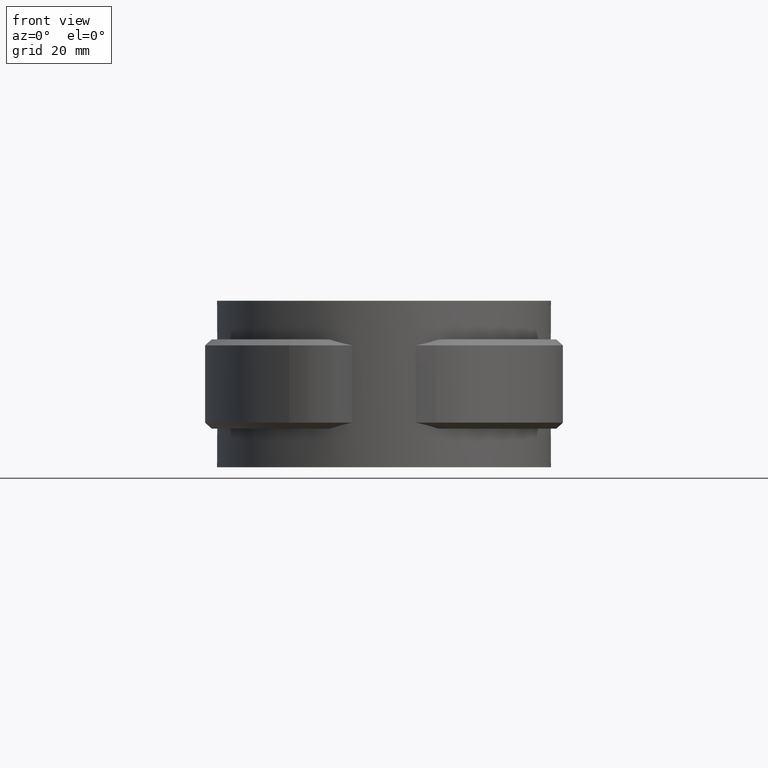
[diagram: clean part render]
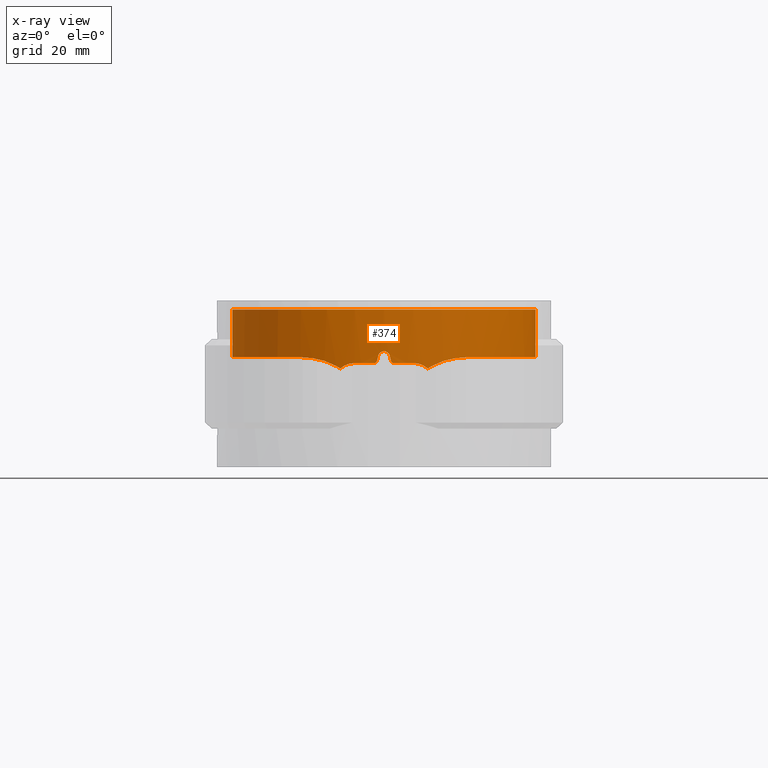
[diagram: x-ray — body ghosted, one internal face saturated and labeled with its STEP entity id]
A machine part, front view, then the same camera in x-ray: the body is ghosted and one INTERNAL B-rep face — a face not visible from any outside direction — is saturated and labeled: STEP entity #374.
In plain terms, the highlighted cylindrical surface (partial cylindrical patch) has radius 25.5 mm, axis along (0, 0, 1).
Its self-contained STEP definition (entity closure, byte-faithful):
#374 = ADVANCED_FACE( '', ( #746 ), #747, .F. );
#746 = FACE_OUTER_BOUND( '', #1689, .T. );
#747 = CYLINDRICAL_SURFACE( '', #1690, 25.5000000000000 );
#1689 = EDGE_LOOP( '', ( #3457, #3458, #3459, #3460, #3461, #3462, #3463, #3464, #3465, #3466, #3467, #3468, #3469, #3470, #3471, #3472, #3473, #3474 ) );
#1690 = AXIS2_PLACEMENT_3D( '', #3475, #3476, #3477 );
#3457 = ORIENTED_EDGE( '', *, *, #7206, .T. );
#3458 = ORIENTED_EDGE( '', *, *, #7171, .T. );
#3459 = ORIENTED_EDGE( '', *, *, #7173, .T. );
#3460 = ORIENTED_EDGE( '', *, *, #7207, .T. );
#3461 = ORIENTED_EDGE( '', *, *, #7208, .T. );
#3462 = ORIENTED_EDGE( '', *, *, #7209, .T. );
#3463 = ORIENTED_EDGE( '', *, *, #7210, .T. );
#3464 = ORIENTED_EDGE( '', *, *, #7211, .T. );
#3465 = ORIENTED_EDGE( '', *, *, #7212, .T. );
#3466 = ORIENTED_EDGE( '', *, *, #7213, .T. );
#3467 = ORIENTED_EDGE( '', *, *, #7214, .T. );
#3468 = ORIENTED_EDGE( '', *, *, #7215, .T. );
#3469 = ORIENTED_EDGE( '', *, *, #7193, .T. );
#3470 = ORIENTED_EDGE( '', *, *, #7216, .F. );
#3471 = ORIENTED_EDGE( '', *, *, #7158, .T. );
#3472 = ORIENTED_EDGE( '', *, *, #7217, .T. );
#3473 = ORIENTED_EDGE( '', *, *, #7189, .T. );
#3474 = ORIENTED_EDGE( '', *, *, #7201, .T. );
#3475 = CARTESIAN_POINT( '', ( 0.000000000000000, 0.000000000000000, 0.000000000000000 ) );
#3476 = DIRECTION( '', ( 0.000000000000000, 0.000000000000000, 1.00000000000000 ) );
#3477 = DIRECTION( '', ( 1.00000000000000, -6.12303176911189E-017, 0.000000000000000 ) );
#7158 = EDGE_CURVE( '', #8156, #8154, #8157, .T. );
#7171 = EDGE_CURVE( '', #8162, #8179, #8181, .T. );
#7173 = EDGE_CURVE( '', #8179, #8182, #8184, .T. );
#7189 = EDGE_CURVE( '', #8212, #8210, #8213, .T. );
#7193 = EDGE_CURVE( '', #8219, #8220, #8221, .T. );
#7201 = EDGE_CURVE( '', #8210, #8233, #8235, .T. );
#7206 = EDGE_CURVE( '', #8233, #8162, #8243, .T. );
#7207 = EDGE_CURVE( '', #8182, #8244, #8245, .T. );
#7208 = EDGE_CURVE( '', #8244, #8246, #8247, .T. );
#7209 = EDGE_CURVE( '', #8246, #8248, #8249, .T. );
#7210 = EDGE_CURVE( '', #8248, #8250, #8251, .T. );
#7211 = EDGE_CURVE( '', #8250, #8252, #8253, .T. );
#7212 = EDGE_CURVE( '', #8252, #8254, #8255, .T. );
#7213 = EDGE_CURVE( '', #8254, #8256, #8257, .T. );
#7214 = EDGE_CURVE( '', #8256, #8258, #8259, .T. );
#7215 = EDGE_CURVE( '', #8258, #8219, #8260, .T. );
#7216 = EDGE_CURVE( '', #8156, #8220, #8261, .T. );
#7217 = EDGE_CURVE( '', #8154, #8212, #8262, .T. );
#8154 = VERTEX_POINT( '', #9916 );
#8156 = VERTEX_POINT( '', #9918 );
#8157 = CIRCLE( '', #9919, 25.5000000000000 );
#8162 = VERTEX_POINT( '', #9925 );
#8179 = VERTEX_POINT( '', #9999 );
#8181 = B_SPLINE_CURVE_WITH_KNOTS( '', 3, ( #10002, #10003, #10004, #10005, #10006, #10007, #10008, #10009, #10010, #10011 ), .UNSPECIFIED., .F., .F., ( 4, 2, 2, 2, 4 ), ( 0.00850208511020804, 0.00915846737097784, 0.00981484963174765, 0.0104712318925175, 0.0111276141532873 ), .UNSPECIFIED. );
#8182 = VERTEX_POINT( '', #10012 );
#8184 = CIRCLE( '', #10015, 25.5000000000000 );
#8210 = VERTEX_POINT( '', #10287 );
#8212 = VERTEX_POINT( '', #10295 );
#8213 = B_SPLINE_CURVE_WITH_KNOTS( '', 3, ( #10296, #10297, #10298, #10299, #10300, #10301, #10302, #10303, #10304, #10305, #10306, #10307, #10308, #10309, #10310, #10311, #10312, #10313, #10314, #10315, #10316, #10317, #10318, #10319, #10320, #10321, #10322, #10323, #10324, #10325, #10326, #10327, #10328, #10329, #10330, #10331, #10332, #10333, #10334, #10335, #10336, #10337 ), .UNSPECIFIED., .F., .F., ( 4, 2, 2, 2, 2, 2, 2, 2, 2, 2, 2, 2, 2, 2, 2, 2, 2, 2, 2, 2, 4 ), ( 3.46944695195361E-018, 0.00367893654871731, 0.00735787309743462, 0.00919734137179327, 0.0110368096461519, 0.0147157461948692, 0.0165552144692279, 0.0183946827435865, 0.0220736192923038, 0.0257525558410211, 0.0294314923897385, 0.0331104289384558, 0.0349498972128144, 0.0367893654871731, 0.0404683020358904, 0.0423077703102490, 0.0441472385846077, 0.0478261751333250, 0.0515051116820423, 0.0551840482307596, 0.0588629847794769 ), .UNSPECIFIED. );
#8219 = VERTEX_POINT( '', #10373 );
#8220 = VERTEX_POINT( '', #10374 );
#8221 = B_SPLINE_CURVE_WITH_KNOTS( '', 3, ( #10375, #10376, #10377, #10378, #10379, #10380, #10381, #10382, #10383, #10384, #10385, #10386, #10387, #10388, #10389, #10390, #10391, #10392, #10393, #10394, #10395, #10396, #10397, #10398, #10399, #10400, #10401, #10402, #10403, #10404, #10405, #10406, #10407, #10408, #10409, #10410, #10411, #10412, #10413, #10414, #10415, #10416 ), .UNSPECIFIED., .F., .F., ( 4, 2, 2, 2, 2, 2, 2, 2, 2, 2, 2, 2, 2, 2, 2, 2, 2, 2, 2, 2, 4 ), ( 9.81307786677359E-018, 0.00367893687146762, 0.00735787374293522, 0.00919734217866903, 0.0110368106144028, 0.0147157474858705, 0.0165552159216043, 0.0183946843573381, 0.0220736212288057, 0.0257525581002733, 0.0294314949717409, 0.0331104318432085, 0.0349499002789423, 0.0367893687146762, 0.0404683055861438, 0.0423077740218776, 0.0441472424576114, 0.0478261793290790, 0.0515051162005466, 0.0551840530720142, 0.0588629899434818 ), .UNSPECIFIED. );
#8233 = VERTEX_POINT( '', #10509 );
#8235 = B_SPLINE_CURVE_WITH_KNOTS( '', 3, ( #10515, #10516, #10517, #10518, #10519, #10520, #10521, #10522, #10523, #10524 ), .UNSPECIFIED., .F., .F., ( 4, 2, 2, 2, 4 ), ( 3.46944695195361E-018, 0.00173657544033169, 0.00347315088066339, 0.00520972632099508, 0.00694630176132677 ), .UNSPECIFIED. );
#8243 = B_SPLINE_CURVE_WITH_KNOTS( '', 3, ( #10551, #10552, #10553, #10554 ), .UNSPECIFIED., .F., .F., ( 4, 4 ), ( 2.30978935673937E-016, 0.000798238028061285 ), .UNSPECIFIED. );
#8244 = VERTEX_POINT( '', #10555 );
#8245 = B_SPLINE_CURVE_WITH_KNOTS( '', 3, ( #10556, #10557, #10558, #10559, #10560, #10561 ), .UNSPECIFIED., .F., .F., ( 4, 2, 4 ), ( 8.20849171219253E-018, 0.000336083199100263, 0.000672166398200517 ), .UNSPECIFIED. );
#8246 = VERTEX_POINT( '', #10562 );
#8247 = ELLIPSE( '', #10563, 116.166725925970, 25.5000000000000 );
#8248 = VERTEX_POINT( '', #10564 );
#8249 = B_SPLINE_CURVE_WITH_KNOTS( '', 3, ( #10565, #10566, #10567, #10568, #10569, #10570, #10571, #10572, #10573, #10574 ), .UNSPECIFIED., .F., .F., ( 4, 2, 2, 2, 4 ), ( 1.08420217248550E-019, 0.000671619266939462, 0.00134323853387892, 0.00201485780081838, 0.00268647706775785 ), .UNSPECIFIED. );
#8250 = VERTEX_POINT( '', #10575 );
#8251 = ELLIPSE( '', #10576, 116.166785185313, 25.5000000000000 );
#8252 = VERTEX_POINT( '', #10577 );
#8253 = B_SPLINE_CURVE_WITH_KNOTS( '', 3, ( #10578, #10579, #10580, #10581, #10582, #10583 ), .UNSPECIFIED., .F., .F., ( 4, 2, 4 ), ( 2.04566856771261E-018, 0.000336089115589765, 0.000672178231179528 ), .UNSPECIFIED. );
#8254 = VERTEX_POINT( '', #10584 );
#8255 = CIRCLE( '', #10585, 25.5000000000000 );
#8256 = VERTEX_POINT( '', #10586 );
#8257 = B_SPLINE_CURVE_WITH_KNOTS( '', 3, ( #10587, #10588, #10589, #10590, #10591, #10592, #10593, #10594, #10595, #10596 ), .UNSPECIFIED., .F., .F., ( 4, 2, 2, 2, 4 ), ( 2.60208521396521E-018, 0.000657020620494566, 0.00131404124098913, 0.00197106186148369, 0.00262808248197826 ), .UNSPECIFIED. );
#8258 = VERTEX_POINT( '', #10597 );
#8259 = B_SPLINE_CURVE_WITH_KNOTS( '', 3, ( #10598, #10599, #10600, #10601 ), .UNSPECIFIED., .F., .F., ( 4, 4 ), ( 0.00811585301675410, 0.00891486322571208 ), .UNSPECIFIED. );
#8260 = B_SPLINE_CURVE_WITH_KNOTS( '', 3, ( #10602, #10603, #10604, #10605, #10606, #10607, #10608, #10609, #10610, #10611 ), .UNSPECIFIED., .F., .F., ( 4, 2, 2, 2, 4 ), ( 1.73472347597681E-018, 0.00172797127034804, 0.00345594254069608, 0.00518391381104412, 0.00691188508139215 ), .UNSPECIFIED. );
#8261 = LINE( '', #10612, #10613 );
#8262 = LINE( '', #10614, #10615 );
#9916 = CARTESIAN_POINT( '', ( 6.02727272727272, 24.7774490912821, 0.000000000000000 ) );
#9918 = CARTESIAN_POINT( '', ( -6.02727272727273, 24.7774490912821, 0.000000000000000 ) );
#9919 = AXIS2_PLACEMENT_3D( '', #13787, #13788, #13789 );
#9925 = CARTESIAN_POINT( '', ( 7.34939546607403, -24.4179521312195, -9.90570993449255 ) );
#9999 = CARTESIAN_POINT( '', ( 5.00000000000000, -25.0049995001000, -9.00000000000000 ) );
#10002 = CARTESIAN_POINT( '', ( 7.34939546607647, -24.4179521312336, -9.90570993449475 ) );
#10003 = CARTESIAN_POINT( '', ( 7.19002830042956, -24.4659189844059, -9.76138663719246 ) );
#10004 = CARTESIAN_POINT( '', ( 7.01934867853847, -24.5155951669858, -9.63330824911260 ) );
#10005 = CARTESIAN_POINT( '', ( 6.65548995696407, -24.6168664881457, -9.40887663097829 ) );
#10006 = CARTESIAN_POINT( '', ( 6.46069820901420, -24.6688392725412, -9.31221188509042 ) );
#10007 = CARTESIAN_POINT( '', ( 6.06217657366655, -24.7697853763839, -9.15823201737013 ) );
#10008 = CARTESIAN_POINT( '', ( 5.85712685122793, -24.8191636452639, -9.09978998882263 ) );
#10009 = CARTESIAN_POINT( '', ( 5.43511411233680, -24.9149825122885, -9.02052155223629 ) );
#10010 = CARTESIAN_POINT( '', ( 5.21770426459036, -24.9614673527409, -8.99999999999997 ) );
#10011 = CARTESIAN_POINT( '', ( 5.00000000000000, -25.0049995001000, -8.99999999999997 ) );
#10012 = CARTESIAN_POINT( '', ( 1.64999999999995, -25.4465616537873, -9.00000000000000 ) );
#10015 = AXIS2_PLACEMENT_3D( '', #13797, #13798, #13799 );
#10287 = CARTESIAN_POINT( '', ( 14.0380773796952, -21.2880807843660, -8.00256714084616 ) );
#10295 = CARTESIAN_POINT( '', ( 6.02727272727272, 24.7774490912821, -8.00435030719461 ) );
#10296 = CARTESIAN_POINT( '', ( 6.02727272727272, 24.7774490912821, -8.00435030719460 ) );
#10297 = CARTESIAN_POINT( '', ( 7.23599043617387, 24.4834207893777, -8.00648047280333 ) );
#10298 = CARTESIAN_POINT( '', ( 8.40833073396198, 24.1050752320822, -8.00960165786446 ) );
#10299 = CARTESIAN_POINT( '', ( 10.6832558674306, 23.1866927729472, -8.01318213386109 ) );
#10300 = CARTESIAN_POINT( '', ( 11.7858329233706, 22.6466378563930, -8.01365063241761 ) );
#10301 = CARTESIAN_POINT( '', ( 13.3862508932498, 21.7126645761644, -8.01194020932682 ) );
#10302 = CARTESIAN_POINT( '', ( 13.9128744927420, 21.3790956027200, -8.01099314390399 ) );
#10303 = CARTESIAN_POINT( '', ( 14.9346540631046, 20.6782473497254, -8.00870389442224 ) );
#10304 = CARTESIAN_POINT( '', ( 15.4301058098800, 20.3110731277476, -8.00736616175202 ) );
#10305 = CARTESIAN_POINT( '', ( 16.8712199239447, 19.1604636138356, -8.00364013782481 ) );
#10306 = CARTESIAN_POINT( '', ( 17.7718715818085, 18.3281911366352, -8.00192910382054 ) );
#10307 = CARTESIAN_POINT( '', ( 19.0326615365575, 16.9819256063667, -8.00325822963941 ) );
#10308 = CARTESIAN_POINT( '', ( 19.4378359745583, 16.5167986474918, -8.00410926809196 ) );
#10309 = CARTESIAN_POINT( '', ( 20.2172730657249, 15.5530053276380, -8.00596291424165 ) );
#10310 = CARTESIAN_POINT( '', ( 20.5911038168385, 15.0544916301788, -8.00696233647980 ) );
#10311 = CARTESIAN_POINT( '', ( 21.6478825447636, 13.5330809457384, -8.00941485428378 ) );
#10312 = CARTESIAN_POINT( '', ( 22.2730579252557, 12.4766092997537, -8.01022551509677 ) );
#10313 = CARTESIAN_POINT( '', ( 23.3678649736153, 10.2809423466617, -8.00918317122034 ) );
#10314 = CARTESIAN_POINT( '', ( 23.8378586430602, 9.14070903084015, -8.00732483371213 ) );
#10315 = CARTESIAN_POINT( '', ( 24.6140797702939, 6.77813715814395, -8.00356538833633 ) );
#10316 = CARTESIAN_POINT( '', ( 24.9115322156420, 5.58301647356335, -8.00198911275021 ) );
#10317 = CARTESIAN_POINT( '', ( 25.3323822198717, 3.16621561827068, -8.00374588587573 ) );
#10318 = CARTESIAN_POINT( '', ( 25.4557627807475, 1.94453246483196, -8.00619494150133 ) );
#10319 = CARTESIAN_POINT( '', ( 25.5073199262339, 0.0916323898620054, -8.00875896915986 ) );
#10320 = CARTESIAN_POINT( '', ( 25.5019716075597, -0.531937079970103, -8.00945183909588 ) );
#10321 = CARTESIAN_POINT( '', ( 25.4460859163681, -1.76924403818120, -8.01022075164433 ) );
#10322 = CARTESIAN_POINT( '', ( 25.3957817943379, -2.38369131147523, -8.01030010625810 ) );
#10323 = CARTESIAN_POINT( '', ( 25.1793005739384, -4.21469945113369, -8.00960044908886 ) );
#10324 = CARTESIAN_POINT( '', ( 24.9478887611008, -5.41898940567201, -8.00777838101161 ) );
#10325 = CARTESIAN_POINT( '', ( 24.4699097122901, -7.20081027566577, -8.00488788943961 ) );
#10326 = CARTESIAN_POINT( '', ( 24.2886897740294, -7.79063256149351, -8.00392447499050 ) );
#10327 = CARTESIAN_POINT( '', ( 23.8813713223785, -8.96183633023490, -8.00263638335562 ) );
#10328 = CARTESIAN_POINT( '', ( 23.6553997221500, -9.54217470382321, -8.00235062104054 ) );
#10329 = CARTESIAN_POINT( '', ( 22.9212815692395, -11.2422856926676, -8.00347753568806 ) );
#10330 = CARTESIAN_POINT( '', ( 22.3541015416671, -12.3308245985621, -8.00625745362341 ) );
#10331 = CARTESIAN_POINT( '', ( 21.0671094039184, -14.4198471690583, -8.01034287151952 ) );
#10332 = CARTESIAN_POINT( '', ( 20.3460259093578, -15.4218763635057, -8.01164285375984 ) );
#10333 = CARTESIAN_POINT( '', ( 18.7496539580305, -17.3275941010177, -8.01098931174753 ) );
#10334 = CARTESIAN_POINT( '', ( 17.8905079229677, -18.2124564405394, -8.00904794289999 ) );
#10335 = CARTESIAN_POINT( '', ( 16.0539679187838, -19.8502885974732, -8.00459418441659 ) );
#10336 = CARTESIAN_POINT( '', ( 15.0765755120066, -20.6032601428188, -8.00207340656820 ) );
#10337 = CARTESIAN_POINT( '', ( 14.0380773796952, -21.2880807843660, -8.00256714084614 ) );
#10373 = CARTESIAN_POINT( '', ( -14.0380773796952, -21.2880807843660, -8.00256714084616 ) );
#10374 = CARTESIAN_POINT( '', ( -6.02727272727275, 24.7774490912821, -8.00435030719460 ) );
#10375 = CARTESIAN_POINT( '', ( -14.0380773796952, -21.2880807843660, -8.00256714084622 ) );
#10376 = CARTESIAN_POINT( '', ( -15.0765748335687, -20.6032605902037, -8.00207340689083 ) );
#10377 = CARTESIAN_POINT( '', ( -16.0523639473271, -19.8513548135207, -8.00459036403530 ) );
#10378 = CARTESIAN_POINT( '', ( -17.8836958658101, -18.2188939952168, -8.00903135403917 ) );
#10379 = CARTESIAN_POINT( '', ( -18.7392252450658, -17.3383246082448, -8.01096774511733 ) );
#10380 = CARTESIAN_POINT( '', ( -19.9303857377763, -15.9188956933257, -8.01148110754755 ) );
#10381 = CARTESIAN_POINT( '', ( -20.3134828182761, -15.4271260931492, -8.01128025687242 ) );
#10382 = CARTESIAN_POINT( '', ( -21.0386748467039, -14.4224812149986, -8.01020889057149 ) );
#10383 = CARTESIAN_POINT( '', ( -21.3810845038201, -13.9096038910828, -8.00934322425378 ) );
#10384 = CARTESIAN_POINT( '', ( -22.3491571729683, -12.3400402561434, -8.00627899012387 ) );
#10385 = CARTESIAN_POINT( '', ( -22.9159649377144, -11.2525798041515, -8.00350407266921 ) );
#10386 = CARTESIAN_POINT( '', ( -23.6482491570491, -9.55972343349782, -8.00235259351094 ) );
#10387 = CARTESIAN_POINT( '', ( -23.8726141413114, -8.98512090568258, -8.00261977236998 ) );
#10388 = CARTESIAN_POINT( '', ( -24.2809248362162, -7.81478040175771, -8.00388927620166 ) );
#10389 = CARTESIAN_POINT( '', ( -24.4645155229831, -7.21933194521091, -8.00485791612356 ) );
#10390 = CARTESIAN_POINT( '', ( -24.9456398910394, -5.43048289420762, -8.00775959323832 ) );
#10391 = CARTESIAN_POINT( '', ( -25.1774584165853, -4.22498207278109, -8.00958799193542 ) );
#10392 = CARTESIAN_POINT( '', ( -25.4667570883330, -1.78862216190127, -8.01053593061586 ) );
#10393 = CARTESIAN_POINT( '', ( -25.5242275512407, -0.556664814739370, -8.00964804073775 ) );
#10394 = CARTESIAN_POINT( '', ( -25.4572985075182, 1.92925387199237, -8.00622397376219 ) );
#10395 = CARTESIAN_POINT( '', ( -25.3338276137651, 3.15463021899782, -8.00376500142650 ) );
#10396 = CARTESIAN_POINT( '', ( -24.9140823583699, 5.57162576120669, -8.00198679981767 ) );
#10397 = CARTESIAN_POINT( '', ( -24.6177909264119, 6.76324171536864, -8.00354427372976 ) );
#10398 = CARTESIAN_POINT( '', ( -24.0407996273683, 8.52477098965043, -8.00634346301506 ) );
#10399 = CARTESIAN_POINT( '', ( -23.8252540906671, 9.10992766866603, -8.00731782038835 ) );
#10400 = CARTESIAN_POINT( '', ( -23.3549453192577, 10.2557322384927, -8.00886216294284 ) );
#10401 = CARTESIAN_POINT( '', ( -23.1001622816006, 10.8171263074039, -8.00943360835258 ) );
#10402 = CARTESIAN_POINT( '', ( -22.2782570688612, 12.4675634315691, -8.01022930180090 ) );
#10403 = CARTESIAN_POINT( '', ( -21.6538720806443, 13.5230333142732, -8.00942431553697 ) );
#10404 = CARTESIAN_POINT( '', ( -20.6024251696231, 15.0388905393996, -8.00699078506972 ) );
#10405 = CARTESIAN_POINT( '', ( -20.2327247852361, 15.5329087892142, -8.00600289559682 ) );
#10406 = CARTESIAN_POINT( '', ( -19.4539299472975, 16.4978488687100, -8.00414443728875 ) );
#10407 = CARTESIAN_POINT( '', ( -19.0453063875102, 16.9678325370193, -8.00327935129466 ) );
#10408 = CARTESIAN_POINT( '', ( -17.7803400055229, 18.3203071721486, -8.00192275643557 ) );
#10409 = CARTESIAN_POINT( '', ( -16.8789739270039, 19.1534679280417, -8.00362196790979 ) );
#10410 = CARTESIAN_POINT( '', ( -14.9622992328879, 20.6853739672388, -8.00857382474504 ) );
#10411 = CARTESIAN_POINT( '', ( -13.9452719100082, 21.3851451340507, -8.01132449803803 ) );
#10412 = CARTESIAN_POINT( '', ( -11.7992644014956, 22.6400618513306, -8.01365421465965 ) );
#10413 = CARTESIAN_POINT( '', ( -10.6918342745611, 23.1829359891876, -8.01319224678382 ) );
#10414 = CARTESIAN_POINT( '', ( -8.41019594682173, 24.1046146073633, -8.00960796655416 ) );
#10415 = CARTESIAN_POINT( '', ( -7.23598862404177, 24.4834212301904, -8.00648046960975 ) );
#10416 = CARTESIAN_POINT( '', ( -6.02727272727273, 24.7774490912821, -8.00435030719461 ) );
#10509 = CARTESIAN_POINT( '', ( 8.00834492137894, -24.2098412142710, -9.50509198069079 ) );
#10515 = CARTESIAN_POINT( '', ( 14.0380773796952, -21.2880807843660, -8.00256714084617 ) );
#10516 = CARTESIAN_POINT( '', ( 13.5533081799099, -21.6077539200897, -8.01158658802493 ) );
#10517 = CARTESIAN_POINT( '', ( 13.0599904453706, -21.9093280854432, -8.04374183318711 ) );
#10518 = CARTESIAN_POINT( '', ( 12.0570345764823, -22.4768753346694, -8.15898000554412 ) );
#10519 = CARTESIAN_POINT( '', ( 11.5460437637076, -22.7433785813847, -8.24235852946532 ) );
#10520 = CARTESIAN_POINT( '', ( 10.5222652635921, -23.2347655381380, -8.47099233953589 ) );
#10521 = CARTESIAN_POINT( '', ( 10.0056174788121, -23.4614129377732, -8.61688839015065 ) );
#10522 = CARTESIAN_POINT( '', ( 8.98850884475527, -23.8695828810807, -8.99045959509709 ) );
#10523 = CARTESIAN_POINT( '', ( 8.48867257435765, -24.0509541944727, -9.21620899507361 ) );
#10524 = CARTESIAN_POINT( '', ( 8.00834492137896, -24.2098412142711, -9.50509198069114 ) );
#10551 = CARTESIAN_POINT( '', ( 8.00834492137897, -24.2098412142712, -9.50509198069118 ) );
#10552 = CARTESIAN_POINT( '', ( 7.78678672940039, -24.2831301881979, -9.63391701784471 ) );
#10553 = CARTESIAN_POINT( '', ( 7.56687878413544, -24.3524932875475, -9.76706377273428 ) );
#10554 = CARTESIAN_POINT( '', ( 7.34939546609056, -24.4179521312293, -9.90570993451342 ) );
#10555 = CARTESIAN_POINT( '', ( 1.16219499999999, -25.4735019732658, -8.60975599999999 ) );
#10556 = CARTESIAN_POINT( '', ( 1.64999999999995, -25.4465616537873, -8.99999999999995 ) );
#10557 = CARTESIAN_POINT( '', ( 1.53659991012920, -25.4539147158958, -9.00000000048666 ) );
#10558 = CARTESIAN_POINT( '', ( 1.42648680398588, -25.4602242781617, -8.96144237442400 ) );
#10559 = CARTESIAN_POINT( '', ( 1.24913749967912, -25.4695414250657, -8.81968188091255 ) );
#10560 = CARTESIAN_POINT( '', ( 1.18713991437309, -25.4723638943793, -8.72062228832456 ) );
#10561 = CARTESIAN_POINT( '', ( 1.16219499999999, -25.4735019732658, -8.60975599999999 ) );
#10562 = CARTESIAN_POINT( '', ( 0.975609757981813, -25.4813301379683, -7.78048781325256 ) );
#10563 = AXIS2_PLACEMENT_3D( '', #13800, #13801, #13802 );
#10564 = CARTESIAN_POINT( '', ( -0.975610000000026, -25.4813301287021, -7.78048800000004 ) );
#10565 = CARTESIAN_POINT( '', ( 0.975609757981816, -25.4813301379683, -7.78048781325256 ) );
#10566 = CARTESIAN_POINT( '', ( 0.925760627941450, -25.4832387234868, -7.55893621431624 ) );
#10567 = CARTESIAN_POINT( '', ( 0.802002231077809, -25.4880019776319, -7.36098152789277 ) );
#10568 = CARTESIAN_POINT( '', ( 0.447412249788038, -25.4966914455417, -7.07730044565886 ) );
#10569 = CARTESIAN_POINT( '', ( 0.227096997064036, -25.5000000081517, -6.99999981140865 ) );
#10570 = CARTESIAN_POINT( '', ( -0.227098827707840, -25.4999999918483, -7.00000018172440 ) );
#10571 = CARTESIAN_POINT( '', ( -0.447442086841618, -25.4966908125914, -7.07731897433820 ) );
#10572 = CARTESIAN_POINT( '', ( -0.802000627794619, -25.4880019186867, -7.36098526735058 ) );
#10573 = CARTESIAN_POINT( '', ( -0.925760910065686, -25.4832387131592, -7.55893638128833 ) );
#10574 = CARTESIAN_POINT( '', ( -0.975610000000027, -25.4813301287021, -7.78048800000004 ) );
#10575 = CARTESIAN_POINT( '', ( -1.16219512100914, -25.4735019677449, -8.60975609337373 ) );
#10576 = AXIS2_PLACEMENT_3D( '', #13803, #13804, #13805 );
#10577 = CARTESIAN_POINT( '', ( -1.65000000000003, -25.4465616537873, -9.00000000000000 ) );
#10578 = CARTESIAN_POINT( '', ( -1.16219512100915, -25.4735019677449, -8.60975609337372 ) );
#10579 = CARTESIAN_POINT( '', ( -1.18714002699007, -25.4723638891226, -8.72062234662147 ) );
#10580 = CARTESIAN_POINT( '', ( -1.24913144108472, -25.4695417339208, -8.81967596727058 ) );
#10581 = CARTESIAN_POINT( '', ( -1.42648745791825, -25.4602242532433, -8.96144389594983 ) );
#10582 = CARTESIAN_POINT( '', ( -1.53659994153400, -25.4539147138594, -8.99999999999994 ) );
#10583 = CARTESIAN_POINT( '', ( -1.65000000000003, -25.4465616537873, -8.99999999999994 ) );
#10584 = CARTESIAN_POINT( '', ( -5.00000000000005, -25.0049995001000, -9.00000000000000 ) );
#10585 = AXIS2_PLACEMENT_3D( '', #13806, #13807, #13808 );
#10586 = CARTESIAN_POINT( '', ( -7.34939546607936, -24.4179521312217, -9.90570993449727 ) );
#10587 = CARTESIAN_POINT( '', ( -5.00000000000005, -25.0049995001000, -8.99999999999997 ) );
#10588 = CARTESIAN_POINT( '', ( -5.21789844744591, -24.9614285239348, -8.99999999999997 ) );
#10589 = CARTESIAN_POINT( '', ( -5.43179761623777, -24.9156980240702, -9.02016546210309 ) );
#10590 = CARTESIAN_POINT( '', ( -5.85208480869495, -24.8203452184345, -9.09858131490400 ) );
#10591 = CARTESIAN_POINT( '', ( -6.05973397163828, -24.7703977474211, -9.15734011687089 ) );
#10592 = CARTESIAN_POINT( '', ( -6.46167704070207, -24.6685976535784, -9.31253840593970 ) );
#10593 = CARTESIAN_POINT( '', ( -6.65277635996363, -24.6175976341052, -9.40745746389647 ) );
#10594 = CARTESIAN_POINT( '', ( -7.01605676002254, -24.5165351163359, -9.63102733125049 ) );
#10595 = CARTESIAN_POINT( '', ( -7.18977934866886, -24.4659939147249, -9.76116118586488 ) );
#10596 = CARTESIAN_POINT( '', ( -7.34939546608096, -24.4179521312322, -9.90570993449872 ) );
#10597 = CARTESIAN_POINT( '', ( -8.00834492137897, -24.2098412142712, -9.50509198069118 ) );
#10598 = CARTESIAN_POINT( '', ( -7.34939546609135, -24.4179521312291, -9.90570993451290 ) );
#10599 = CARTESIAN_POINT( '', ( -7.56702074644256, -24.3524505592658, -9.76697327140675 ) );
#10600 = CARTESIAN_POINT( '', ( -7.78692269222753, -24.2830852132141, -9.63383796224265 ) );
#10601 = CARTESIAN_POINT( '', ( -8.00834492137897, -24.2098412142712, -9.50509198069118 ) );
#10602 = CARTESIAN_POINT( '', ( -8.00834492137897, -24.2098412142712, -9.50509198069118 ) );
#10603 = CARTESIAN_POINT( '', ( -8.48983332359675, -24.0505702315961, -9.21551088680596 ) );
#10604 = CARTESIAN_POINT( '', ( -8.98884999455235, -23.8693963122353, -8.99045015204694 ) );
#10605 = CARTESIAN_POINT( '', ( -10.0012845353573, -23.4632012346555, -8.61836442464061 ) );
#10606 = CARTESIAN_POINT( '', ( -10.5175586698763, -23.2369189913460, -8.47219902970378 ) );
#10607 = CARTESIAN_POINT( '', ( -11.5430829606839, -22.7449044919392, -8.24286530814062 ) );
#10608 = CARTESIAN_POINT( '', ( -12.0531284718486, -22.4790097879914, -8.15951322728733 ) );
#10609 = CARTESIAN_POINT( '', ( -13.0588333618892, -21.9100583804314, -8.04379078831736 ) );
#10610 = CARTESIAN_POINT( '', ( -13.5529697894653, -21.6079770661447, -8.01159288399985 ) );
#10611 = CARTESIAN_POINT( '', ( -14.0380773796952, -21.2880807843660, -8.00256714084614 ) );
#10612 = CARTESIAN_POINT( '', ( -6.02727272727273, 24.7774490912821, 0.000000000000000 ) );
#10613 = VECTOR( '', #13809, 1000.00000000000 );
#10614 = CARTESIAN_POINT( '', ( 6.02727272727272, 24.7774490912821, 0.000000000000000 ) );
#10615 = VECTOR( '', #13810, 1000.00000000000 );
#13787 = CARTESIAN_POINT( '', ( 0.000000000000000, 0.000000000000000, 0.000000000000000 ) );
#13788 = DIRECTION( '', ( 0.000000000000000, 0.000000000000000, 1.00000000000000 ) );
#13789 = DIRECTION( '', ( 1.00000000000000, -6.12303176911189E-017, 0.000000000000000 ) );
#13797 = CARTESIAN_POINT( '', ( 0.000000000000000, 0.000000000000000, -9.00000000000001 ) );
#13798 = DIRECTION( '', ( 6.12303176911189E-017, -3.13145149531439E-016, -1.00000000000000 ) );
#13799 = DIRECTION( '', ( 0.000000000000000, 1.00000000000000, -3.13145149531439E-016 ) );
#13800 = CARTESIAN_POINT( '', ( 0.000000000000000, 0.000000000000000, -3.44444212055032 ) );
#13801 = DIRECTION( '', ( -0.975609781292647, -1.70596433957388E-016, -0.219512083143762 ) );
#13802 = DIRECTION( '', ( 0.219512083143762, 3.83841770684855E-017, -0.975609781292647 ) );
#13803 = CARTESIAN_POINT( '', ( 0.000000000000000, 0.000000000000000, -3.44443890776446 ) );
#13804 = DIRECTION( '', ( 0.975609806487711, 3.31181834532395E-017, -0.219511971165610 ) );
#13805 = DIRECTION( '', ( -0.219511971165610, -7.45158328965245E-018, -0.975609806487711 ) );
#13806 = CARTESIAN_POINT( '', ( 0.000000000000000, 0.000000000000000, -9.00000000000001 ) );
#13807 = DIRECTION( '', ( 6.12303176911189E-017, -3.13145149531439E-016, -1.00000000000000 ) );
#13808 = DIRECTION( '', ( 0.000000000000000, 1.00000000000000, -3.13145149531439E-016 ) );
#13809 = DIRECTION( '', ( 0.000000000000000, 0.000000000000000, -1.00000000000000 ) );
#13810 = DIRECTION( '', ( 0.000000000000000, 0.000000000000000, -1.00000000000000 ) );